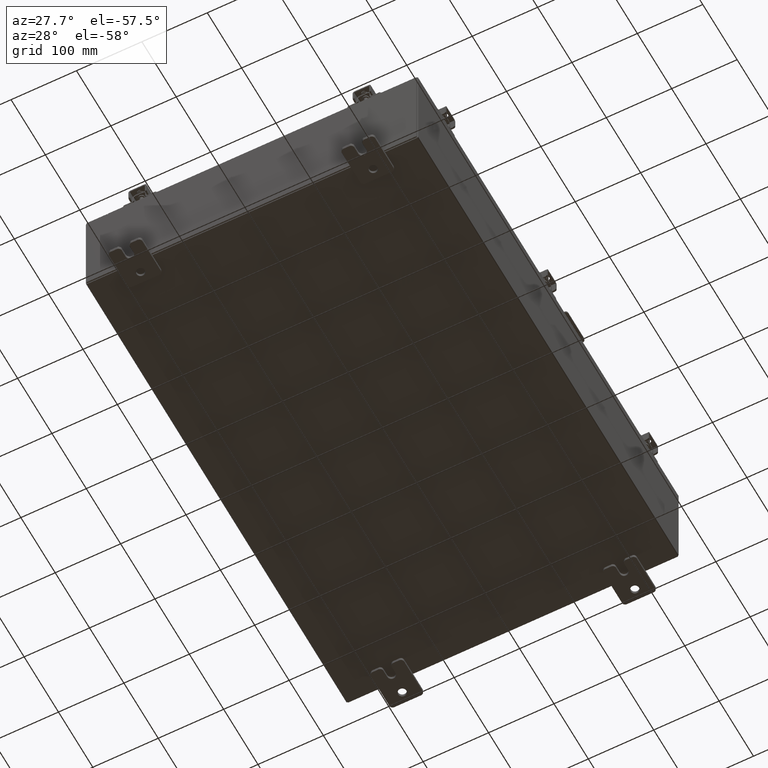
[diagram: clean part render]
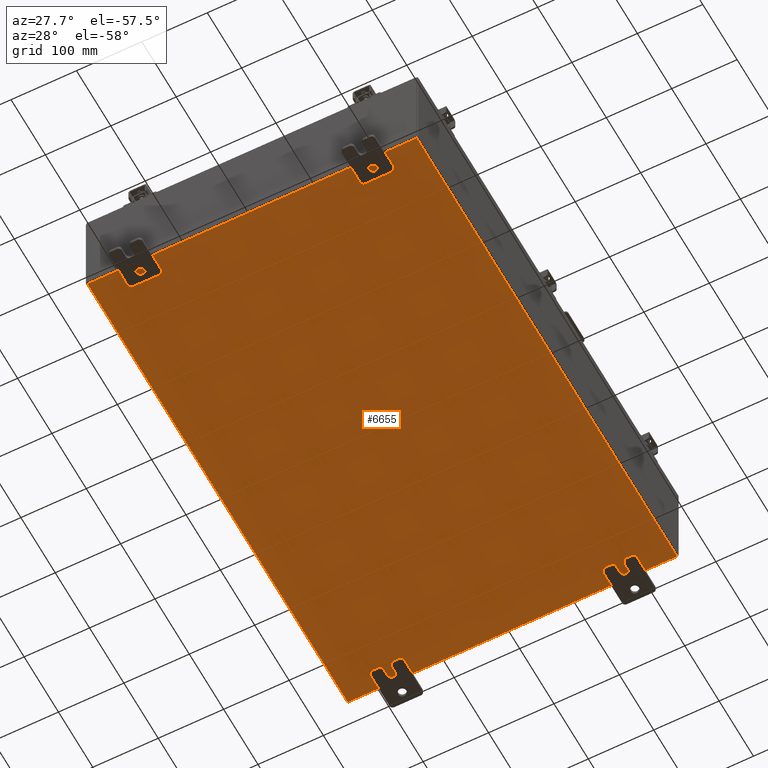
[diagram: same view with one face highlighted and labeled with its STEP entity id]
A machine part, auxiliary view. The second image highlights one B-rep face of the part: STEP entity #6655.
In plain terms, the highlighted planar face has unit normal (0, 0, -1).
Its self-contained STEP definition (entity closure, byte-faithful):
#211 = FACE_OUTER_BOUND ( 'NONE', #16592, .T. ) ;
#227 = VERTEX_POINT ( 'NONE', #23154 ) ;
#1049 = LINE ( 'NONE', #6011, #31218 ) ;
#2491 = VERTEX_POINT ( 'NONE', #15845 ) ;
#2872 = EDGE_CURVE ( 'NONE', #17235, #227, #11420, .T. ) ;
#3068 = DIRECTION ( 'NONE',  ( -1.000000000000000000, -0.0000000000000000000, -0.0000000000000000000 ) ) ;
#6011 = CARTESIAN_POINT ( 'NONE',  ( -9.912300000000000100, -14.92529999999999600, -0.07469999999999994700 ) ) ;
#6655 = ADVANCED_FACE ( 'NONE', ( #211 ), #10979, .T. ) ;
#10979 = PLANE ( 'NONE',  #21471 ) ;
#11420 = LINE ( 'NONE', #11676, #21108 ) ;
#11676 = CARTESIAN_POINT ( 'NONE',  ( -10.00000000000000000, -14.92529999999999600, -0.07470000000000000300 ) ) ;
#14628 = ORIENTED_EDGE ( 'NONE', *, *, #23800, .F. ) ;
#14834 = CARTESIAN_POINT ( 'NONE',  ( -10.00000000000000000, 14.92530000000000500, -0.07470000000000000300 ) ) ;
#15845 = CARTESIAN_POINT ( 'NONE',  ( -9.912300000000000100, 14.92530000000000500, -0.07470000000000000300 ) ) ;
#16592 = EDGE_LOOP ( 'NONE', ( #36331, #23345, #14628, #34145 ) ) ;
#16909 = CARTESIAN_POINT ( 'NONE',  ( 0.0000000000000000000, 0.0000000000000000000, -0.07470000000000000300 ) ) ;
#17235 = VERTEX_POINT ( 'NONE', #35321 ) ;
#17727 = VECTOR ( 'NONE', #3068, 39.37007874015748100 ) ;
#18495 = EDGE_CURVE ( 'NONE', #29364, #227, #34604, .T. ) ;
#18658 = LINE ( 'NONE', #14834, #17727 ) ;
#19888 = DIRECTION ( 'NONE',  ( -1.000000000000000000, 0.0000000000000000000, -0.0000000000000000000 ) ) ;
#21108 = VECTOR ( 'NONE', #32184, 39.37007874015748100 ) ;
#21234 = DIRECTION ( 'NONE',  ( -0.0000000000000000000, -1.000000000000000000, -0.0000000000000000000 ) ) ;
#21471 = AXIS2_PLACEMENT_3D ( 'NONE', #16909, #37409, #19888 ) ;
#23154 = CARTESIAN_POINT ( 'NONE',  ( 9.912300000000000100, -14.92529999999999600, -0.07470000000000000300 ) ) ;
#23345 = ORIENTED_EDGE ( 'NONE', *, *, #31552, .T. ) ;
#23800 = EDGE_CURVE ( 'NONE', #29364, #2491, #18658, .T. ) ;
#24050 = CARTESIAN_POINT ( 'NONE',  ( 9.912300000000000100, 14.92530000000000500, -0.07469999999999994700 ) ) ;
#26795 = VECTOR ( 'NONE', #21234, 39.37007874015748100 ) ;
#27884 = CARTESIAN_POINT ( 'NONE',  ( 9.912300000000000100, 14.92530000000000500, -0.07469999999999994700 ) ) ;
#29364 = VERTEX_POINT ( 'NONE', #27884 ) ;
#31218 = VECTOR ( 'NONE', #35360, 39.37007874015748100 ) ;
#31552 = EDGE_CURVE ( 'NONE', #17235, #2491, #1049, .T. ) ;
#32184 = DIRECTION ( 'NONE',  ( 1.000000000000000000, 0.0000000000000000000, 0.0000000000000000000 ) ) ;
#34145 = ORIENTED_EDGE ( 'NONE', *, *, #18495, .T. ) ;
#34604 = LINE ( 'NONE', #24050, #26795 ) ;
#35321 = CARTESIAN_POINT ( 'NONE',  ( -9.912300000000000100, -14.92529999999999600, -0.07469999999999994700 ) ) ;
#35360 = DIRECTION ( 'NONE',  ( -0.0000000000000000000, 1.000000000000000000, -0.0000000000000000000 ) ) ;
#36331 = ORIENTED_EDGE ( 'NONE', *, *, #2872, .F. ) ;
#37409 = DIRECTION ( 'NONE',  ( 0.0000000000000000000, 0.0000000000000000000, -1.000000000000000000 ) ) ;